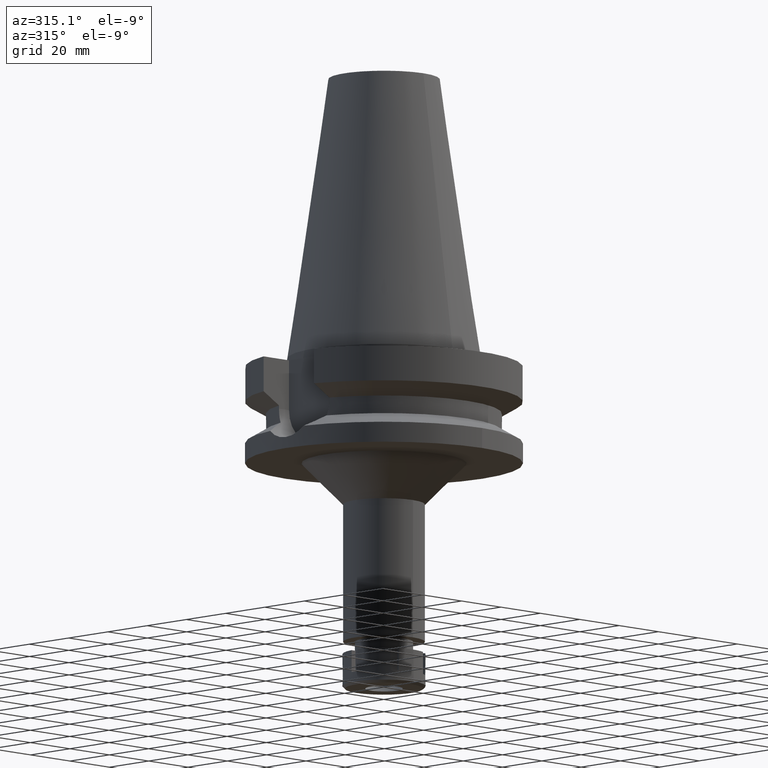
[diagram: clean part render]
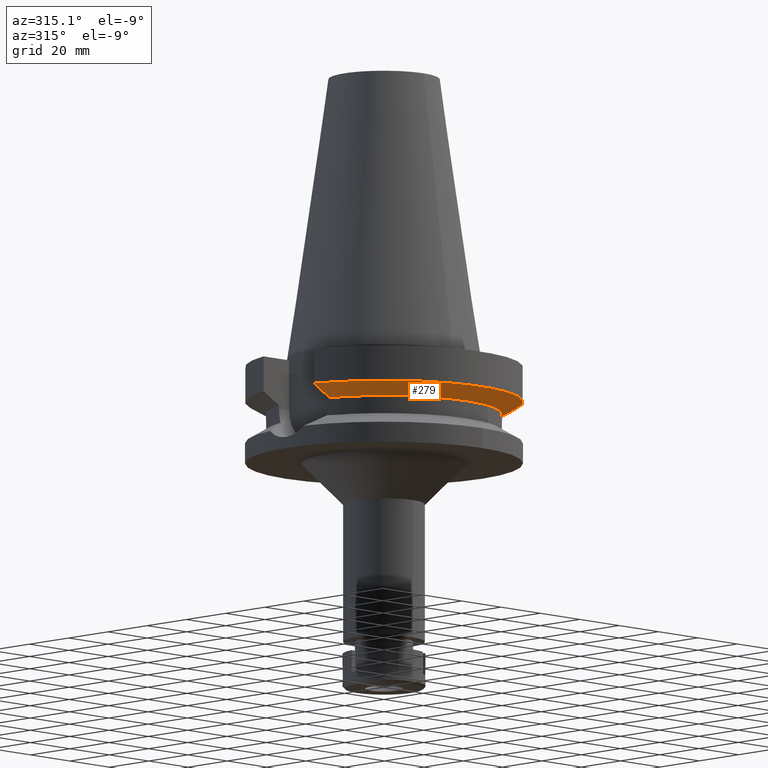
[diagram: same view with one face highlighted and labeled with its STEP entity id]
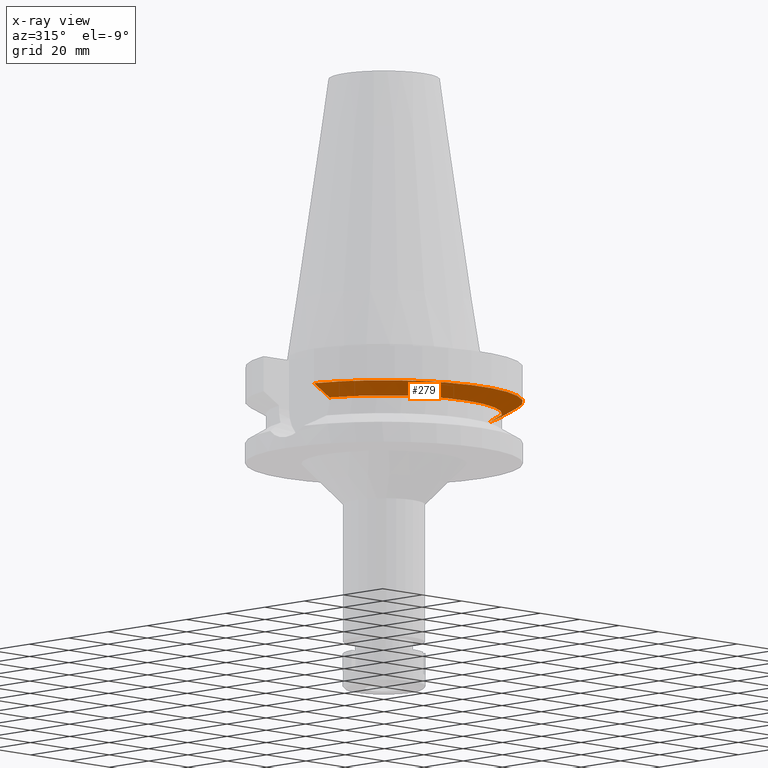
[diagram: x-ray of the same camera — body ghosted, the highlighted face saturated]
A machine part, auxiliary view. The second image highlights one B-rep face of the part: STEP entity #279.
The next image is the same camera in x-ray: the body ghosted, the highlighted face saturated — about 0% of this face is hidden behind the body in this view.
In plain terms, the highlighted conical surface has half-angle 60 deg.
Its self-contained STEP definition (entity closure, byte-faithful):
#63 = B_SPLINE_CURVE_WITH_KNOTS ( 'NONE', 3,
 ( #2688, #2433, #443, #1580 ),
 .UNSPECIFIED., .F., .F.,
 ( 4, 4 ),
 ( 0.0000000000000000000, 1.000000000000000000 ),
 .UNSPECIFIED. ) ;
#94 = CIRCLE ( 'NONE', #2636, 50.00000000000000000 ) ;
#279 = ADVANCED_FACE ( 'NONE', ( #994 ), #1572, .T. ) ;
#443 = CARTESIAN_POINT ( 'NONE',  ( 45.51179413642908145, -12.85000770597952524, -17.22986975180884528 ) ) ;
#452 = AXIS2_PLACEMENT_3D ( 'NONE', #3669, #1751, #3109 ) ;
#546 = EDGE_CURVE ( 'NONE', #2939, #2617, #2983, .T. ) ;
#713 = CARTESIAN_POINT ( 'NONE',  ( 0.0000000000000000000, 1.006319759053999930E-14, -15.66269223573000069 ) ) ;
#769 = VERTEX_POINT ( 'NONE', #2306 ) ;
#782 = VERTEX_POINT ( 'NONE', #1769 ) ;
#994 = FACE_OUTER_BOUND ( 'NONE', #1875, .T. ) ;
#1006 = DIRECTION ( 'NONE',  ( 0.0000000000000000000, -1.000000000000000000, 0.0000000000000000000 ) ) ;
#1305 = DIRECTION ( 'NONE',  ( 0.0000000000000000000, 0.0000000000000000000, 1.000000000000000000 ) ) ;
#1421 = CARTESIAN_POINT ( 'NONE',  ( -45.51179876871565710, -12.85000770595750019, -17.22986719700327995 ) ) ;
#1552 = DIRECTION ( 'NONE',  ( 0.0000000000000000000, 1.000000000000000000, 0.0000000000000000000 ) ) ;
#1572 = CONICAL_SURFACE ( 'NONE', #2692, 46.25000000000000000, 1.047197551196400456 ) ;
#1580 = CARTESIAN_POINT ( 'NONE',  ( 48.32057015392000210, -12.84999999999999964, -15.66269223573000069 ) ) ;
#1751 = DIRECTION ( 'NONE',  ( 0.0000000000000000000, 0.0000000000000000000, -1.000000000000000000 ) ) ;
#1769 = CARTESIAN_POINT ( 'NONE',  ( 40.51083188481999997, -12.84999999999999964, -19.99281925464999787 ) ) ;
#1875 = EDGE_LOOP ( 'NONE', ( #1887, #3460, #1979, #3424 ) ) ;
#1887 = ORIENTED_EDGE ( 'NONE', *, *, #546, .T. ) ;
#1979 = ORIENTED_EDGE ( 'NONE', *, *, #2223, .T. ) ;
#2158 = EDGE_CURVE ( 'NONE', #2939, #769, #94, .T. ) ;
#2223 = EDGE_CURVE ( 'NONE', #782, #769, #63, .T. ) ;
#2306 = CARTESIAN_POINT ( 'NONE',  ( 48.32057015392000210, -12.84999999999999964, -15.66269223573000069 ) ) ;
#2366 = CARTESIAN_POINT ( 'NONE',  ( -48.32056912867000165, -12.85000385529999889, -15.66265770025999871 ) ) ;
#2433 = CARTESIAN_POINT ( 'NONE',  ( 42.90862808452397559, -12.84999309367450415, -18.67324602408181278 ) ) ;
#2617 = VERTEX_POINT ( 'NONE', #3272 ) ;
#2636 = AXIS2_PLACEMENT_3D ( 'NONE', #713, #1305, #1006 ) ;
#2688 = CARTESIAN_POINT ( 'NONE',  ( 40.51083188481999997, -12.84999999999999964, -19.99281925464999787 ) ) ;
#2692 = AXIS2_PLACEMENT_3D ( 'NONE', #3510, #2912, #1552 ) ;
#2795 = CARTESIAN_POINT ( 'NONE',  ( -40.51083297747999978, -12.84999655528999796, -19.99284569041000026 ) ) ;
#2912 = DIRECTION ( 'NONE',  ( 0.0000000000000000000, 0.0000000000000000000, 1.000000000000000000 ) ) ;
#2939 = VERTEX_POINT ( 'NONE', #2366 ) ;
#2983 = B_SPLINE_CURVE_WITH_KNOTS ( 'NONE', 3,
 ( #3341, #1421, #3433, #2795 ),
 .UNSPECIFIED., .F., .F.,
 ( 4, 4 ),
 ( 0.0000000000000000000, 1.000000000000000000 ),
 .UNSPECIFIED. ) ;
#3109 = DIRECTION ( 'NONE',  ( 0.9531960443486575674, -0.3023529411764863672, 0.0000000000000000000 ) ) ;
#3189 = CIRCLE ( 'NONE', #452, 42.50000000000002132 ) ;
#3272 = CARTESIAN_POINT ( 'NONE',  ( -40.51083297747999978, -12.84999655528999796, -19.99284569041000026 ) ) ;
#3341 = CARTESIAN_POINT ( 'NONE',  ( -48.32056912867000165, -12.85000385529999889, -15.66265770025999871 ) ) ;
#3424 = ORIENTED_EDGE ( 'NONE', *, *, #2158, .F. ) ;
#3432 = EDGE_CURVE ( 'NONE', #782, #2617, #3189, .T. ) ;
#3433 = CARTESIAN_POINT ( 'NONE',  ( -42.90862463620887723, -12.84999310357308389, -18.67324795091278844 ) ) ;
#3460 = ORIENTED_EDGE ( 'NONE', *, *, #3432, .F. ) ;
#3510 = CARTESIAN_POINT ( 'NONE',  ( 0.0000000000000000000, 1.006319759053999930E-14, -17.82775574519000017 ) ) ;
#3669 = CARTESIAN_POINT ( 'NONE',  ( 0.0000000000000000000, 1.006319759053999930E-14, -19.99281925464999787 ) ) ;